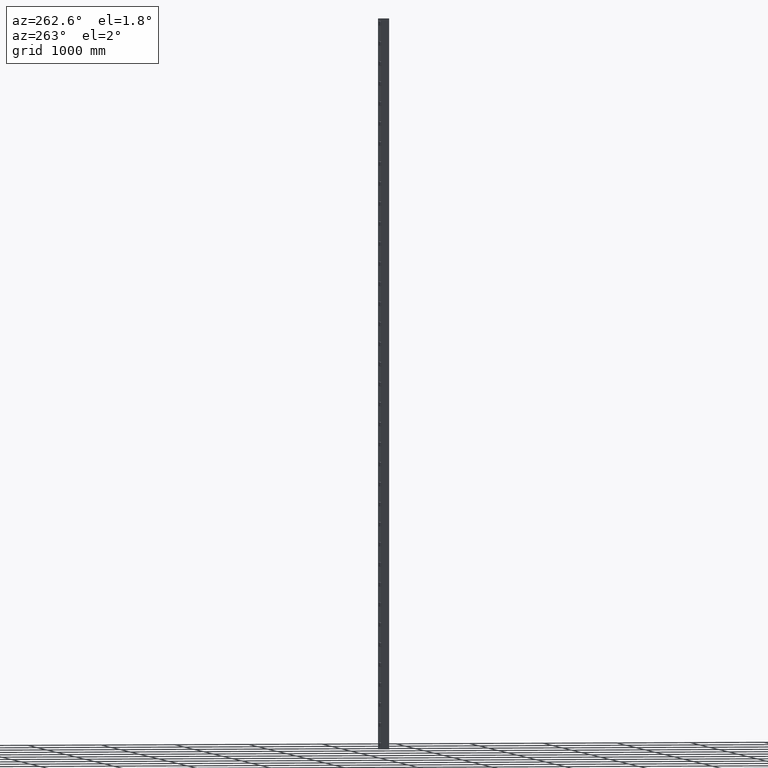
[diagram: clean part render]
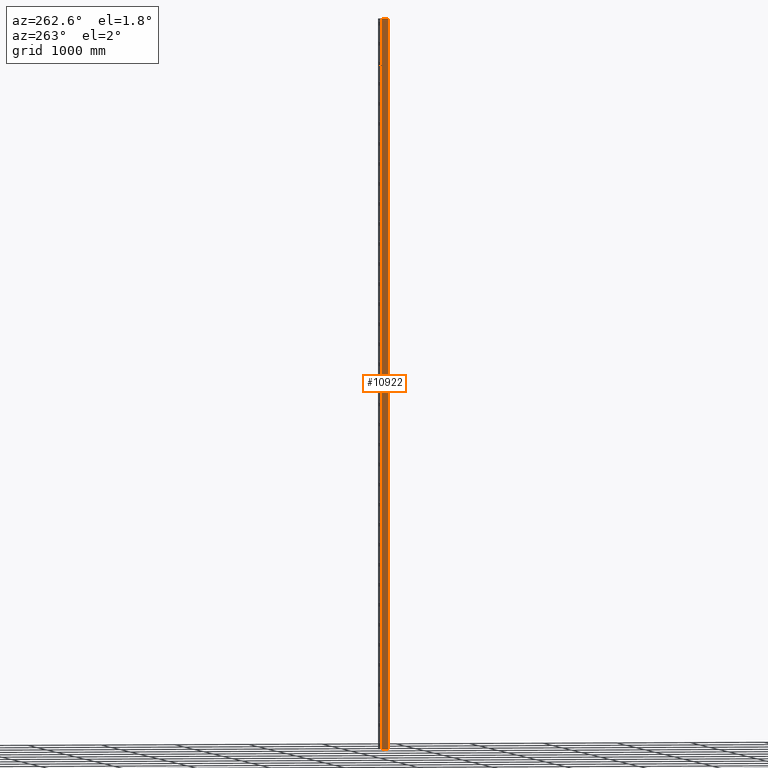
[diagram: same view with one face highlighted and labeled with its STEP entity id]
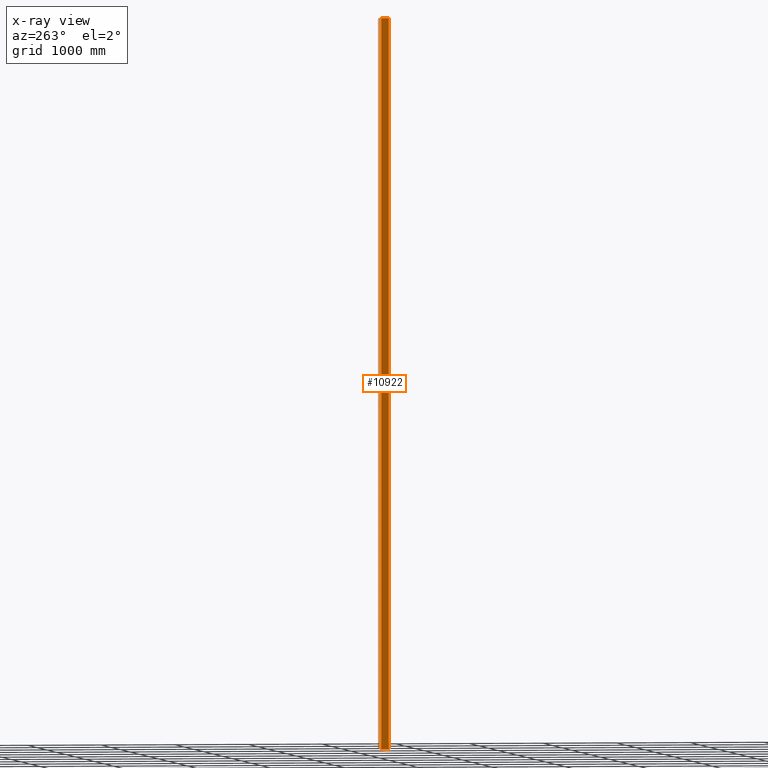
[diagram: x-ray of the same camera — body ghosted, the highlighted face saturated]
A machine part, auxiliary view. The second image highlights one B-rep face of the part: STEP entity #10922.
The next image is the same camera in x-ray: the body ghosted, the highlighted face saturated — about 0% of this face is hidden behind the body in this view.
In plain terms, the highlighted planar face has unit normal (-0.9986, 0.0526, 0).
Its self-contained STEP definition (entity closure, byte-faithful):
#10673=CARTESIAN_POINT('',(-17.57502307658627,106.15960020593775,9850.0));
#10674=VERTEX_POINT('',#10673);
#10682=CARTESIAN_POINT('',(-22.720518594779683,8.4205796084618,9850.0));
#10683=VERTEX_POINT('',#10682);
#10684=CARTESIAN_POINT('',(-22.720518594779683,8.4205796084618,9850.0));
#10685=DIRECTION('',(0.052572451057725,0.998617112505981,0.0));
#10686=VECTOR('',#10685,97.874369839512013);
#10687=LINE('',#10684,#10686);
#10688=EDGE_CURVE('',#10683,#10674,#10687,.T.);
#10837=CARTESIAN_POINT('',(-22.720518594779683,8.4205796084618,0.0));
#10838=VERTEX_POINT('',#10837);
#10839=CARTESIAN_POINT('',(-22.720518594779683,8.4205796084618,9850.0));
#10840=DIRECTION('',(0.0,0.0,-1.0));
#10841=VECTOR('',#10840,9850.0);
#10842=LINE('',#10839,#10841);
#10843=EDGE_CURVE('',#10683,#10838,#10842,.T.);
#10888=CARTESIAN_POINT('',(-17.57502307658627,106.15960020593775,0.0));
#10889=VERTEX_POINT('',#10888);
#10897=CARTESIAN_POINT('',(-17.57502307658627,106.15960020593775,9850.0));
#10898=DIRECTION('',(0.0,0.0,-1.0));
#10899=VECTOR('',#10898,9850.0);
#10900=LINE('',#10897,#10899);
#10901=EDGE_CURVE('',#10674,#10889,#10900,.T.);
#10906=CARTESIAN_POINT('',(-17.57502307658627,106.15960020593775,10000.0));
#10907=DIRECTION('',(-0.998617112505981,0.052572451057725,0.0));
#10908=DIRECTION('',(0.0,0.0,1.0));
#10909=AXIS2_PLACEMENT_3D('',#10906,#10907,#10908);
#10910=PLANE('',#10909);
#10911=ORIENTED_EDGE('',*,*,#10688,.T.);
#10912=ORIENTED_EDGE('',*,*,#10901,.T.);
#10913=CARTESIAN_POINT('',(-22.720518594779683,8.4205796084618,7.105427E-013));
#10914=DIRECTION('',(0.052572451057725,0.998617112505981,0.0));
#10915=VECTOR('',#10914,97.874369839512013);
#10916=LINE('',#10913,#10915);
#10917=EDGE_CURVE('',#10838,#10889,#10916,.T.);
#10918=ORIENTED_EDGE('',*,*,#10917,.F.);
#10919=ORIENTED_EDGE('',*,*,#10843,.F.);
#10920=EDGE_LOOP('',(#10911,#10912,#10918,#10919));
#10921=FACE_OUTER_BOUND('',#10920,.T.);
#10922=ADVANCED_FACE('',(#10921),#10910,.T.);